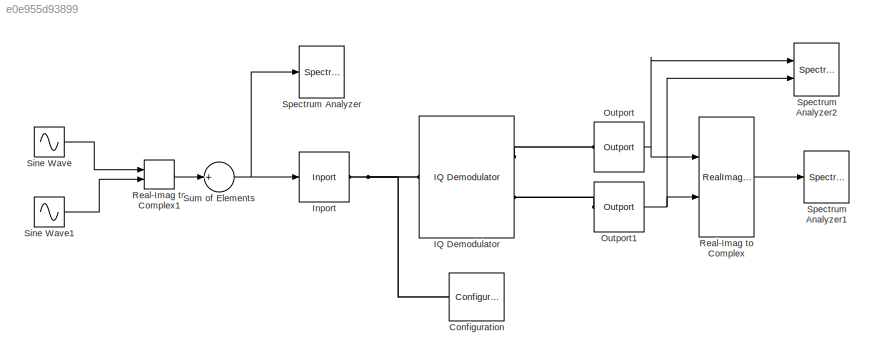
MODEL slx_e0e955d93899
KIND model
CONFIG AbsTol = auto
CONFIG EnableMultiTasking = off
CONFIG FixedStep = auto
CONFIG MaxStep = auto
CONFIG MinStep = auto
CONFIG RelTol = 1e-3
CONFIG SampleTimeConstraint = Unconstrained
CONFIG Solver = FixedStepDiscrete
CONFIG SolverName = FixedStepDiscrete
CONFIG StartTime = 0.0
CONFIG StopTime = 1e-2
BLOCK [Reference] Configuration  REF=simrfV2util1/Configuration
  Ports = [0, 0, 0, 0, 0, 1]
  SourceBlock = simrfV2util1/Configuration
  SourceProductBaseCode = RB
  SourceProductName = RF Blockset
  SourceType = Configuration
BLOCK [Reference] IQ Demodulator  REF=simrfV2systems/IQ Demodulator
  Ports = [0, 0, 0, 0, 0, 1, 2]
  SourceBlock = simrfV2systems/IQ Demodulator
  SourceProductBaseCode = RB
  SourceProductName = RF Blockset
  SourceType = IQ Demodulator
BLOCK [Reference] Inport  REF=simrfV2util1/Inport
  Ports = [1, 0, 0, 0, 0, 0, 1]
  SourceBlock = simrfV2util1/Inport
  SourceProductBaseCode = RB
  SourceProductName = RF Blockset
  SourceType = Inport
BLOCK [Reference] Outport  REF=simrfV2util1/Outport
  Ports = [0, 1, 0, 0, 0, 1]
  SourceBlock = simrfV2util1/Outport
  SourceProductBaseCode = RB
  SourceProductName = RF Blockset
  SourceType = Outport
BLOCK [Reference] Outport1  REF=simrfV2util1/Outport
  Ports = [0, 1, 0, 0, 0, 1]
  SourceBlock = simrfV2util1/Outport
  SourceProductBaseCode = RB
  SourceProductName = RF Blockset
  SourceType = Outport
BLOCK [RealImagToComplex] Real-Imag to Complex
  Ports = [2, 1]
BLOCK [RealImagToComplex] Real-Imag to Complex1
  Ports = [2, 1]
BLOCK [Sin] Sine Wave
  Amplitude = 1e-3
  Frequency = [10e6 15e6]*2*pi
  Phase = pi/2
  Ports = [0, 1]
  SampleTime = 1e-8
BLOCK [Sin] Sine Wave1
  Amplitude = 1e-3
  Frequency = [10e6 15e6]*2*pi
  Ports = [0, 1]
  SampleTime = 1e-8
BLOCK [SpectrumAnalyzer] Spectrum Analyzer
  Ports = [1]
  ScopeSpecificationString = spbscopes.SpectrumAnalyzerBlockCfg('CurrentConfiguration', extmgr.ConfigurationSet(extmgr.Configuration('Core','General UI',true),extmgr.Configuration('Core','Source UI',true),extmgr.Configuration('Sources','WiredSimulink',true),extmgr.Configuration('Visuals','Spectrum',true,'AxesProperties',struct('Color',{[0 0 0],[0 0 0]},'XColor',{[0.686274509803922 0.686274509803922 0.686274509803922],[0.68627...<+2074ch>
BLOCK [SpectrumAnalyzer] Spectrum Analyzer1
  Ports = [1]
  ScopeSpecificationString = spbscopes.SpectrumAnalyzerBlockCfg('CurrentConfiguration', extmgr.ConfigurationSet(extmgr.Configuration('Core','General UI',true),extmgr.Configuration('Core','Source UI',true),extmgr.Configuration('Sources','WiredSimulink',true),extmgr.Configuration('Visuals','Spectrum',true,'AxesProperties',struct('Color',{[0 0 0],[0 0 0]},'XColor',{[0.686274509803922 0.686274509803922 0.686274509803922],[0.68627...<+2028ch>
BLOCK [SpectrumAnalyzer] Spectrum Analyzer2
  NumInputPorts = 2
  Ports = [2]
  ScopeSpecificationString = spbscopes.SpectrumAnalyzerBlockCfg('CurrentConfiguration', extmgr.ConfigurationSet(extmgr.Configuration('Core','General UI',true),extmgr.Configuration('Core','Source UI',true),extmgr.Configuration('Sources','WiredSimulink',true),extmgr.Configuration('Visuals','Spectrum',true,'AxesProperties',struct('Color',{[0 0 0],[0 0 0]},'XColor',{[0.686274509803922 0.686274509803922 0.686274509803922],[0.68627...<+2207ch>
BLOCK [Sum] Sum of Elements
  InputSameDT = off
  Inputs = +
  OutDataTypeStr = Inherit: Inherit via internal rule
  Ports = [1, 1]
  SaturateOnIntegerOverflow = off
NET Outport1:1 -> Real-Imag to Complex:2, Spectrum Analyzer2:2
NET Outport:1 -> Real-Imag to Complex:1, Spectrum Analyzer2:1
LINE Real-Imag to Complex1:1 -> Sum of Elements:1
LINE Real-Imag to Complex:1 -> Spectrum Analyzer1:1
LINE Sine Wave1:1 -> Real-Imag to Complex1:2
LINE Sine Wave:1 -> Real-Imag to Complex1:1
NET Sum of Elements:1 -> Inport:1, Spectrum Analyzer:1
PNET net1: Configuration:LConn1 -- IQ Demodulator:LConn1 -- Inport:RConn1
PLINE IQ Demodulator:RConn1 -- Outport:LConn1
PLINE IQ Demodulator:RConn2 -- Outport1:LConn1
note: NET lines group one-source signal fan-out (src -> all destinations, sorted); 1:1 wires keep LINE; PNET lines group multi-terminal physical nets as a canonical sorted terminal list (undirected conserving connections); 2-terminal nets keep the pairwise PLINE form
